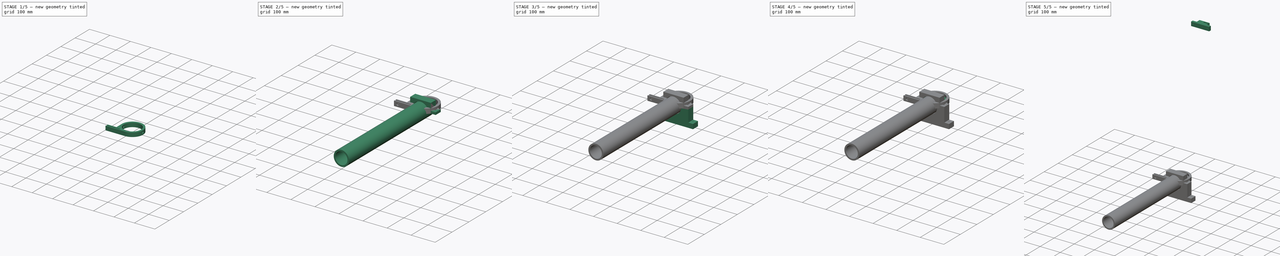
[diagram: build sequence overview — one tinted view per stage of 5, left to right]
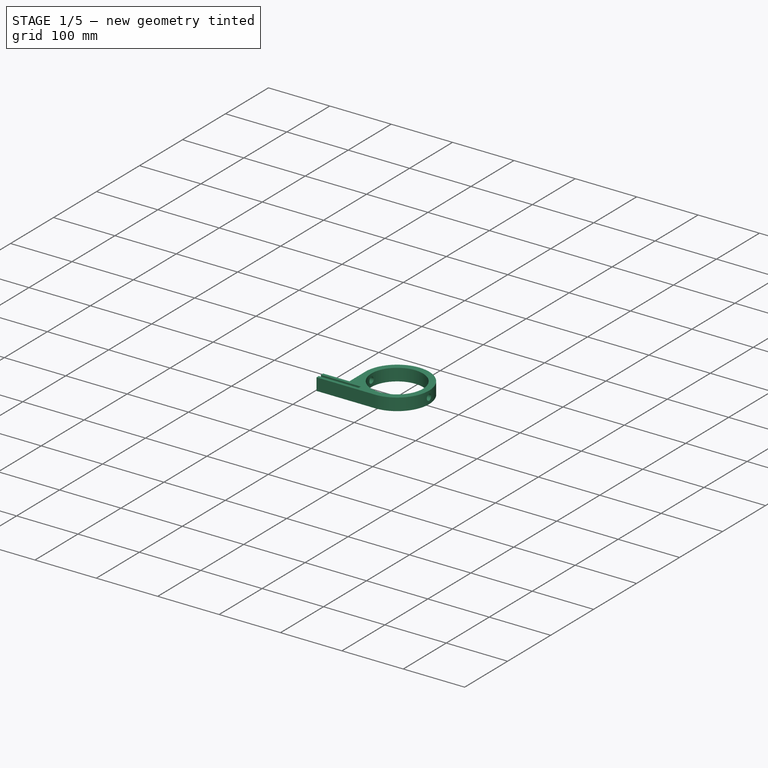
[diagram: stage 1 of 5 — iso view after this stage's code; geometry added in this stage tinted green]
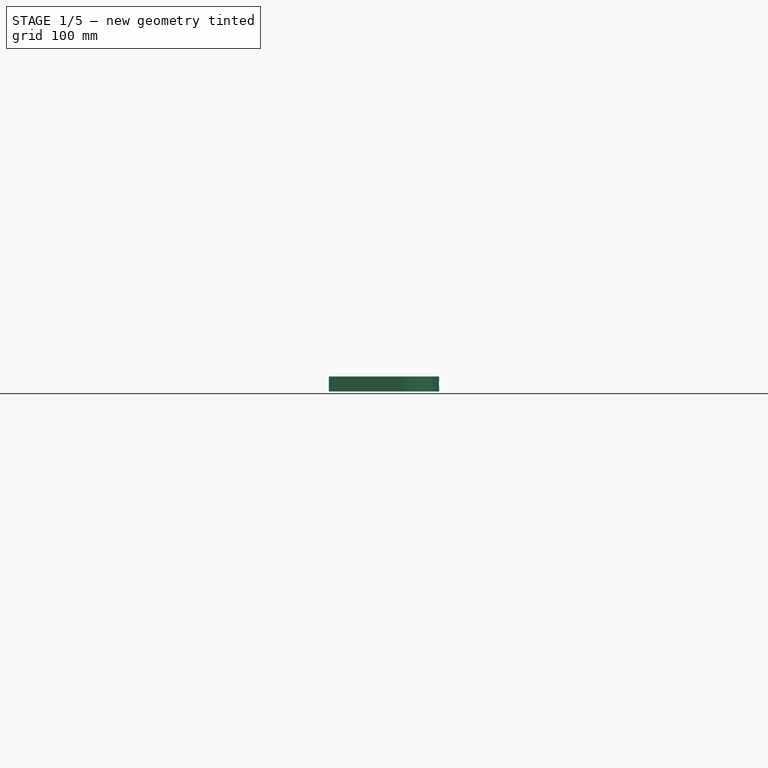
[diagram: stage 1 of 5 — front view after this stage's code; geometry added in this stage tinted green]
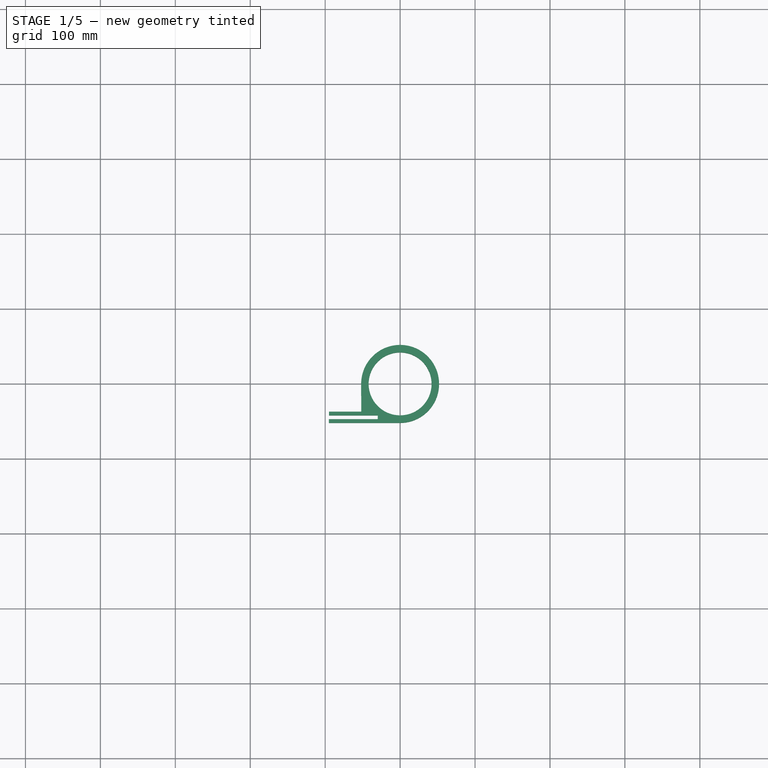
[diagram: stage 1 of 5 — top view after this stage's code; geometry added in this stage tinted green]
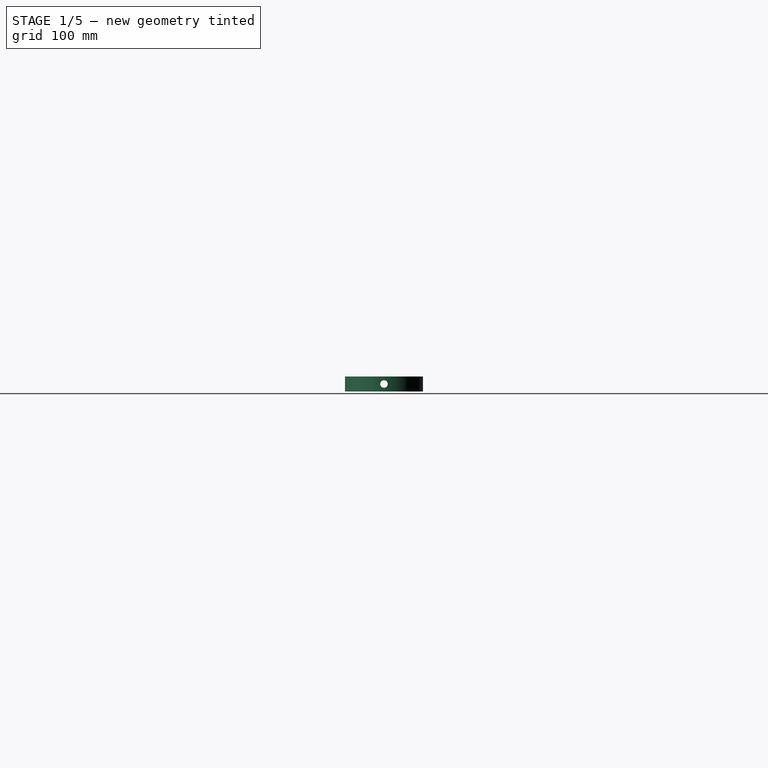
[diagram: stage 1 of 5 — right view after this stage's code; geometry added in this stage tinted green]
FCSTD DOCUMENT  (FreeCAD 0.21R33668 +7 (Git))
Label: Yoke
License: All rights reserved
LicenseURL: https://en.wikipedia.org/wiki/All_rights_reserved
objects: Sketcher::SketchObject×19, PartDesign::Plane×10, PartDesign::Body×7, PartDesign::Hole×7, PartDesign::Pad×6, PartDesign::Pocket×5, App::Part×3, PartDesign::Revolution×1
note: 74 computed .brp shape members not serialized (recipe doc carries the construction recipe); baked Part::Feature solids carry a one-line shape summary decoded from their .brp

FEATURE [PartDesign::Body] Body006  label="Body"
  Group = -> [Sketch019,Pad005]
  Origin = -> Origin012
  Placement = pos=(-12,3,0) rot=(0,0,1;0rad)
  Tip = -> Pad005
FEATURE [App::Part] Part002  label="Rod"
  Group = -> [Body006]
  Origin = -> Origin011
  Placement = pos=(0,-602,0) rot=(0,0,1;0rad)
FEATURE [PartDesign::Pad] Pad
  Direction = (0,0,1)
  Length = 20
  Length2 = 10
  Profile = -> Sketch
  ReferenceAxis = -> Sketch [N_Axis]
  Type = 0
FEATURE [PartDesign::Pocket] Pocket001
  BaseFeature = -> Pad
  Direction = (1,0,0)
  Length = 5
  Length2 = 5
  Profile = -> Sketch002
  ReferenceAxis = -> Sketch002 [N_Axis]
  Type = 1
FEATURE [PartDesign::Hole] Hole001
  BaseFeature = -> Pocket001
  CustomThreadClearance = 0
  Depth = 25
  DepthType = 0
  Diameter = 6.6
  DrillForDepth = false
  DrillPoint = 1
  DrillPointAngle = 118
  HoleCutCountersinkAngle = 90
  HoleCutCustomValues = false
  HoleCutDepth = 0
  HoleCutDiameter = 12
  HoleCutType = 2
  ModelThread = false
  Profile = -> Sketch010
  Tapered = false
  TaperedAngle = 90
  ThreadClass = 0
  ThreadDepth = 25
  ThreadDepthType = 0
  ThreadDirection = 0
  ThreadFit = 0
  ThreadSize = 14
  ThreadType = 1
  Threaded = false
  UseCustomThreadClearance = false
FEATURE [PartDesign::Pocket] Pocket
  BaseFeature = -> Hole001
  Direction = (0,0,-1)
  Length = 5
  Length2 = 5
  Profile = -> Sketch001
  ReferenceAxis = -> Sketch001 [N_Axis]
  Type = 1
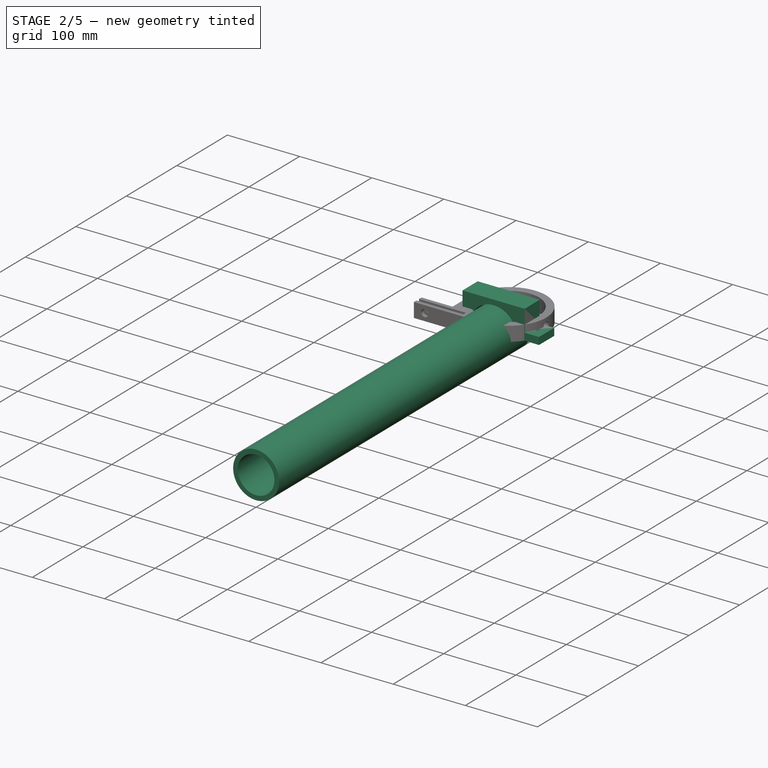
[diagram: stage 2 of 5 — iso view after this stage's code; geometry added in this stage tinted green]
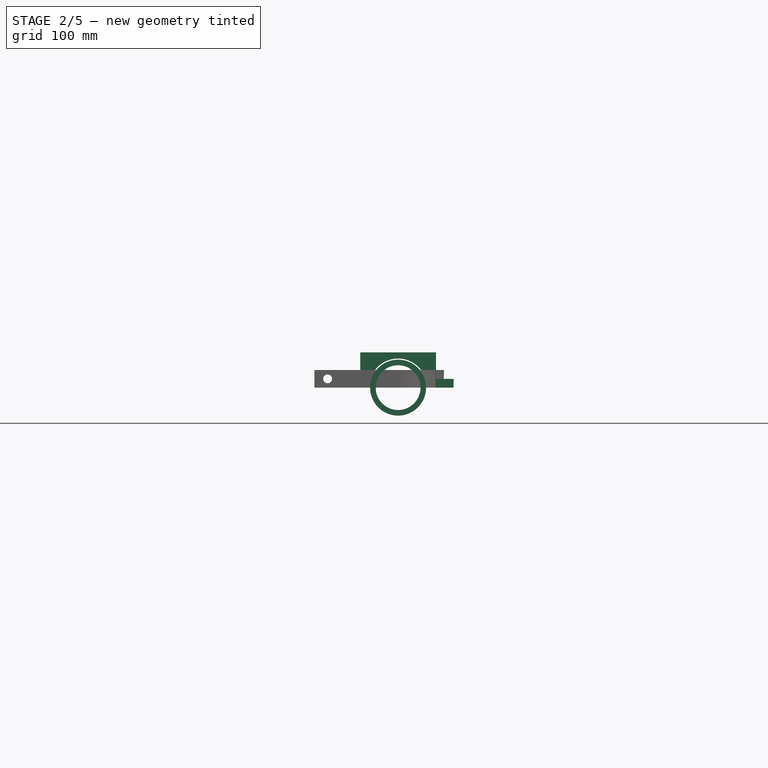
[diagram: stage 2 of 5 — front view after this stage's code; geometry added in this stage tinted green]
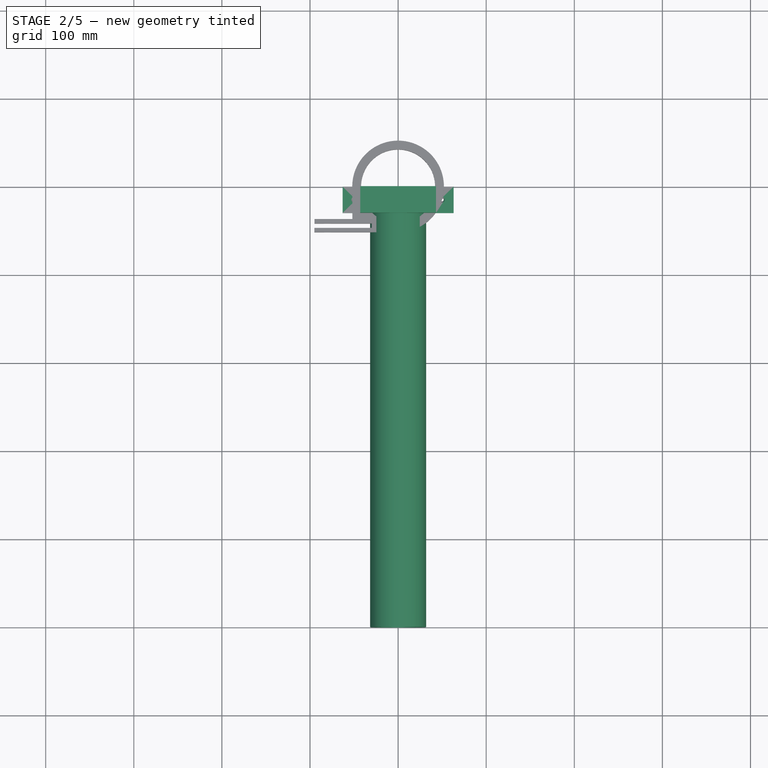
[diagram: stage 2 of 5 — top view after this stage's code; geometry added in this stage tinted green]
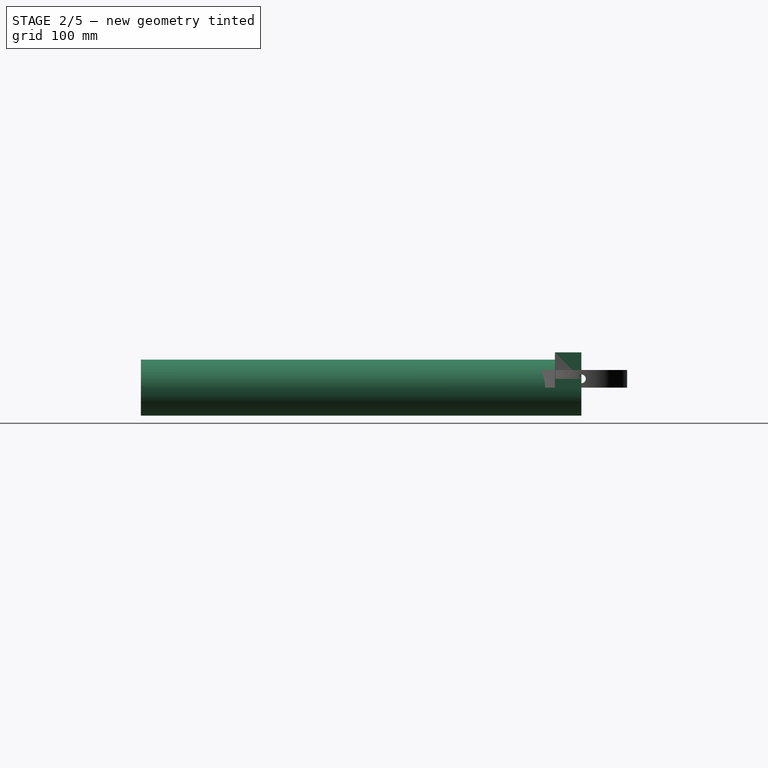
[diagram: stage 2 of 5 — right view after this stage's code; geometry added in this stage tinted green]
FEATURE [PartDesign::Body] Body004  label="Bottom"
  Group = -> [Sketch014,Pad003,DatumPlane009,Sketch015,Hole004,DatumPlane010,Sketch016,Hole005]
  Origin = -> Origin009
  Tip = -> Hole005
FEATURE [Sketcher::SketchObject] Sketch017
  FullyConstrained = true
  MapMode = 5
  Placement = pos=(0,0,0) rot=(1,0,0;1.5708rad)
  Support = -> [XZ_Plane010]
  sketch-geometry (10):
    g0: ArcOfCircle CenterX=0 CenterY=0 CenterZ=0 NormalX=0 NormalY=0 NormalZ=1 AngleXU=0 Radius=33 StartAngle=0 EndAngle=3.14159
    g1: LineSegment StartX=-33 StartY=4e-15 StartZ=0 EndX=-63 EndY=0 EndZ=0
    g2: LineSegment StartX=63 StartY=0 StartZ=0 EndX=33 EndY=0 EndZ=0
    g3: LineSegment StartX=-63 StartY=0 StartZ=0 EndX=-63 EndY=10 EndZ=0
    g4: LineSegment StartX=-63 StartY=10 StartZ=0 EndX=-43 EndY=10 EndZ=0
    g5: LineSegment StartX=-43 StartY=10 StartZ=0 EndX=-43 EndY=40 EndZ=0
    g6: LineSegment StartX=-43 StartY=40 StartZ=0 EndX=43 EndY=40 EndZ=0
    g7: LineSegment StartX=43 StartY=40 StartZ=0 EndX=43 EndY=10 EndZ=0
    g8: LineSegment StartX=43 StartY=10 StartZ=0 EndX=63 EndY=10 EndZ=0
    g9: LineSegment StartX=63 StartY=10 StartZ=0 EndX=63 EndY=0 EndZ=0
  constraints (30):
    c: Coincident(g0,g-1)
    c: PointOnObject(g0,g-1)
    c: PointOnObject(g0,g-1)
    c: Coincident(g0,g1)
    c: Coincident(g2,g0)
    c: Horizontal(g2)
    c: DistanceX(g1,g0) = 30
    c: PointOnObject(g1,g-1)
    c: Coincident(g1,g3)
    c: Vertical(g3)
    c: Coincident(g3,g4)
    c: Horizontal(g4)
    c: Coincident(g4,g5)
    c: Vertical(g5)
    c: Coincident(g5,g6)
    c: Horizontal(g6)
    c: Coincident(g6,g7)
    c: Coincident(g7,g8)
    c: Coincident(g8,g9)
    c: Coincident(g9,g2)
    c: DistanceY(g1,g3) = 10
    c: DistanceX(g3,g4) = 20
    c: DistanceY(g4,g5) = 30
    c: Equal(g2,g1)
    c: DistanceX(g5,g6) = 86
    c: Radius(g0) = 33
    c: Equal(g5,g7)
    c: Equal(g8,g4)
    c: Equal(g9,g3)
    c: Vertical(g9)
FEATURE [PartDesign::Pad] Pad004
  Direction = (0,-1,-2e-16)
  Length = 30
  Length2 = 10
  Placement = pos=(0,0,0) rot=(1,0,0;1.5708rad)
  Profile = -> Sketch017
  ReferenceAxis = -> Sketch017 [N_Axis]
  Type = 0
FEATURE [PartDesign::Plane] DatumPlane011
  Length = 60
  MapMode = 45
  Placement = pos=(0,-15,10) rot=(0,0,1;1.5708rad)
  ResizeMode = 0
  Support = -> [Pad004]
  Width = 60
FEATURE [Sketcher::SketchObject] Sketch018
  FullyConstrained = true
  MapMode = 5
  Placement = pos=(0,-15,10) rot=(0,0,1;1.5708rad)
  Support = -> [DatumPlane011]
  sketch-geometry (2):
    g0: Circle CenterX=0 CenterY=-50 CenterZ=0 NormalX=0 NormalY=0 NormalZ=1 AngleXU=0 Radius=3
    g1: Circle CenterX=0 CenterY=50 CenterZ=0 NormalX=0 NormalY=0 NormalZ=1 AngleXU=0 Radius=3
  constraints (6):
    c: PointOnObject(g0,g-2)
    c: PointOnObject(g1,g-2)
    c: Radius(g0) = 3
    c: Radius(g1) = 3
    c: DistanceY(g-1,g1) = 50
    c: DistanceY(g0,g-1) = 50
FEATURE [PartDesign::Hole] Hole006
  BaseFeature = -> Pad004
  CustomThreadClearance = 0
  Depth = 25
  DepthType = 0
  Diameter = 3.4
  DrillForDepth = false
  DrillPoint = 1
  DrillPointAngle = 118
  HoleCutCountersinkAngle = 90
  HoleCutCustomValues = false
  HoleCutDepth = 1
  HoleCutDiameter = 6.1
  HoleCutType = 3
  ModelThread = false
  Placement = pos=(0,0,0) rot=(1,0,0;1.5708rad)
  Profile = -> Sketch018
  Tapered = false
  TaperedAngle = 90
  ThreadClass = 0
  ThreadDepth = 25
  ThreadDepthType = 0
  ThreadDirection = 0
  ThreadFit = 0
  ThreadSize = 9
  ThreadType = 1
  Threaded = false
  UseCustomThreadClearance = false
FEATURE [PartDesign::Body] Body005  label="Top"
  Group = -> [Sketch017,Pad004,DatumPlane011,Sketch018,Hole006]
  Origin = -> Origin010
  Tip = -> Hole006
FEATURE [App::Part] Part001  label="Rod Support"
  Group = -> [Body004,Body005]
  Origin = -> Origin008
  Placement = pos=(-12,-896,0) rot=(0,0,1;0rad)
FEATURE [Sketcher::SketchObject] Sketch019
  FullyConstrained = true
  MapMode = 5
  Placement = pos=(0,0,0) rot=(1,0,0;1.5708rad)
  Support = -> [XZ_Plane012]
  sketch-geometry (2):
    g0: Circle CenterX=0 CenterY=0 CenterZ=0 NormalX=0 NormalY=0 NormalZ=1 AngleXU=0 Radius=31.75
    g1: Circle CenterX=0 CenterY=0 CenterZ=0 NormalX=0 NormalY=0 NormalZ=1 AngleXU=0 Radius=25.4
  constraints (4):
    c: Coincident(g0,g-1)
    c: Coincident(g1,g0)
    c: Radius(g0) = 31.75
    c: Radius(g1) = 25.4
FEATURE [PartDesign::Pad] Pad005
  Direction = (0,-1,2e-16)
  Length = 500
  Length2 = 10
  Placement = pos=(0,0,0) rot=(1,0,0;1.5708rad)
  Profile = -> Sketch019
  ReferenceAxis = -> Sketch019 [N_Axis]
  Type = 0
FEATURE [PartDesign::Plane] DatumPlane
  Length = 164.146
  MapMode = 5
  Placement = pos=(0,-37,0) rot=(0,0.707107,0.707107;3.14159rad)
  ResizeMode = 0
  Support = -> [Pocket]
  Width = 67.1464
FEATURE [Sketcher::SketchObject] Sketch020
  FullyConstrained = true
  MapMode = 5
  Placement = pos=(0,-37,0) rot=(0,0.707107,0.707107;3.14159rad)
  Support = -> [DatumPlane]
  sketch-geometry (1):
    g0: Circle CenterX=80 CenterY=10 CenterZ=0 NormalX=0 NormalY=0 NormalZ=1 AngleXU=0 Radius=5
  constraints (3):
    c: Radius(g0) = 5
    c: DistanceY(g-1,g0) = 10
    c: DistanceX(g-1,g0) = 80
FEATURE [PartDesign::Pocket] Pocket005
  BaseFeature = -> Pocket
  Direction = (0,-1,2e-16)
  Length = 5
  Length2 = 5
  Profile = -> Sketch020
  ReferenceAxis = -> Sketch020 [N_Axis]
  Type = 1
FEATURE [PartDesign::Body] Body  label="Main Bearing"
  Group = -> [Sketch,Pad,Sketch001,DatumPlane001,Sketch002,Pocket001,Sketch010,Hole001,Pocket,DatumPlane,Sketch020,Pocket005]
  Origin = -> Origin001
  Placement = pos=(1,-773,1.72e-13) rot=(1,0,0;1.5708rad)
  Tip = -> Pocket005
FEATURE [App::Part] Part  label="Y-Axis"
  Group = -> [Body,Body001,Body002,Body003]
  Origin = -> Origin
  Placement = pos=(-13,0,0) rot=(0,0,1;0rad)
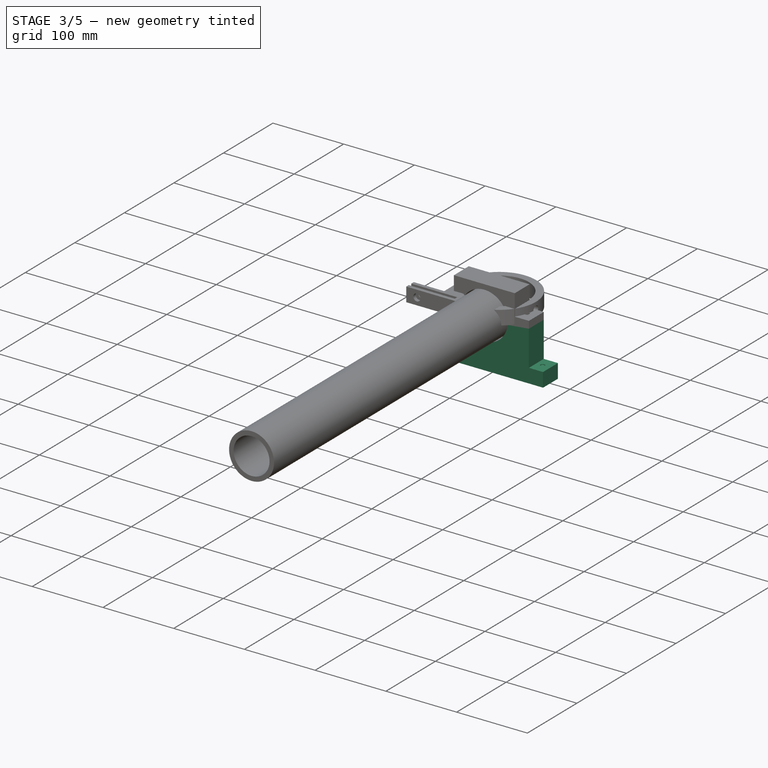
[diagram: stage 3 of 5 — iso view after this stage's code; geometry added in this stage tinted green]
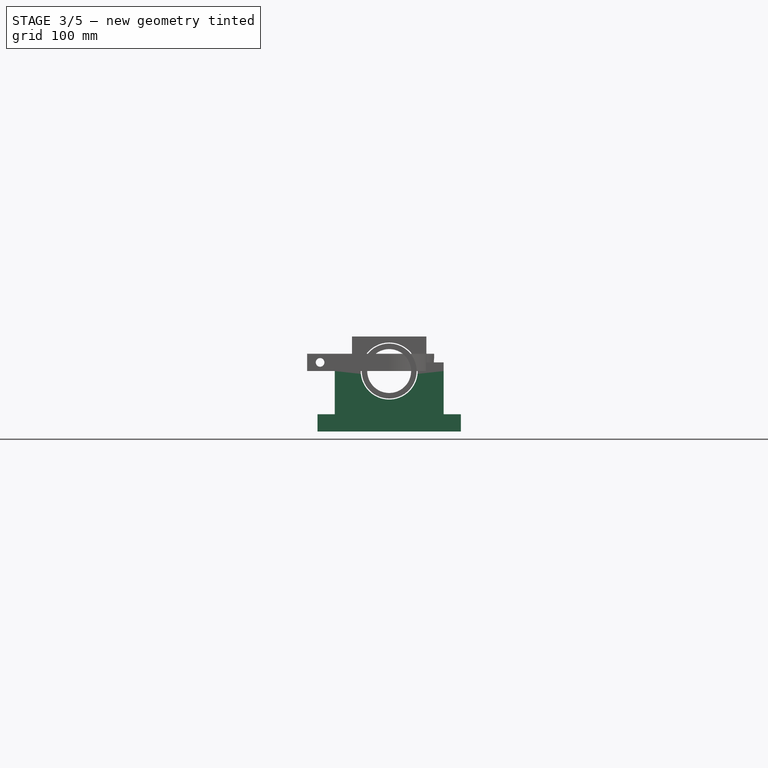
[diagram: stage 3 of 5 — front view after this stage's code; geometry added in this stage tinted green]
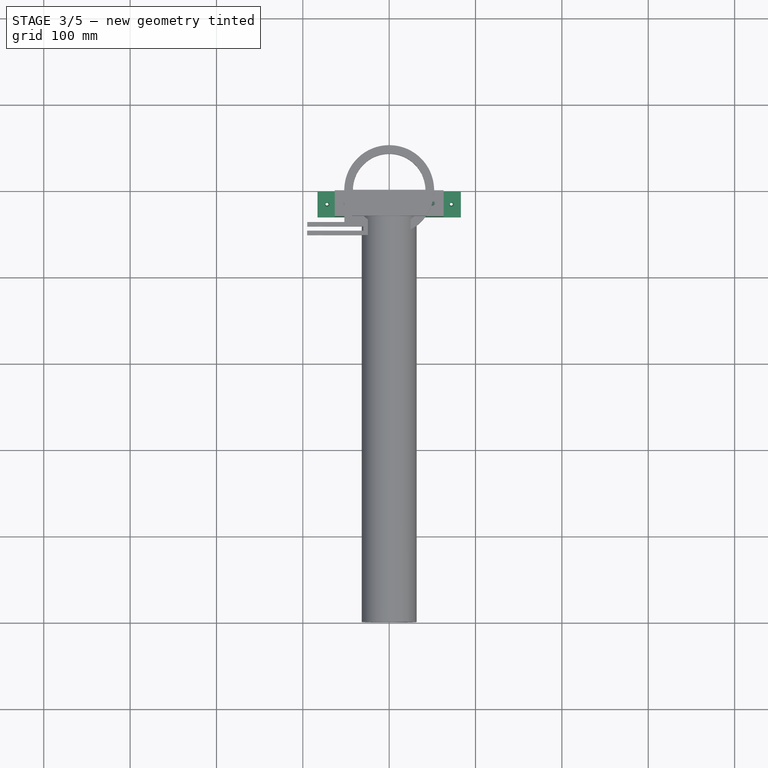
[diagram: stage 3 of 5 — top view after this stage's code; geometry added in this stage tinted green]
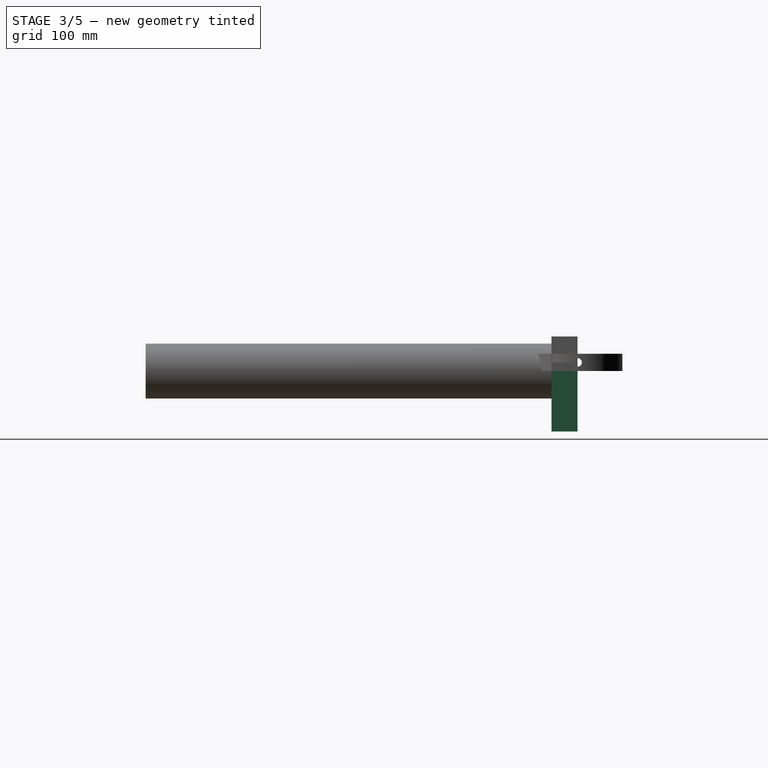
[diagram: stage 3 of 5 — right view after this stage's code; geometry added in this stage tinted green]
FEATURE [PartDesign::Body] Body003  label="Inner Bearing"
  Group = -> [Sketch011,Revolution,DatumPlane007,Sketch012,Hole002,DatumPlane008,Sketch013,Hole003]
  Origin = -> Origin007
  Placement = pos=(1,-783,1.754e-13) rot=(1,0,0;1.5708rad)
  Tip = -> Hole003
FEATURE [Sketcher::SketchObject] Sketch014
  FullyConstrained = true
  MapMode = 5
  Placement = pos=(0,0,0) rot=(1,0,0;1.5708rad)
  Support = -> [XZ_Plane009]
  sketch-geometry (10):
    g0: ArcOfCircle CenterX=0 CenterY=0 CenterZ=0 NormalX=0 NormalY=0 NormalZ=1 AngleXU=0 Radius=33 StartAngle=3.14159 EndAngle=6.28319
    g1: LineSegment StartX=-33 StartY=0 StartZ=0 EndX=-63 EndY=0 EndZ=0
    g2: LineSegment StartX=-63 StartY=0 StartZ=0 EndX=-63 EndY=-50 EndZ=0
    g3: LineSegment StartX=-63 StartY=-50 StartZ=0 EndX=-83 EndY=-50 EndZ=0
    g4: LineSegment StartX=-83 StartY=-50 StartZ=0 EndX=-83 EndY=-70 EndZ=0
    g5: LineSegment StartX=-83 StartY=-70 StartZ=0 EndX=83 EndY=-70 EndZ=0
    g6: LineSegment StartX=83 StartY=-70 StartZ=0 EndX=83 EndY=-50 EndZ=0
    g7: LineSegment StartX=83 StartY=-50 StartZ=0 EndX=63 EndY=-50 EndZ=0
    g8: LineSegment StartX=63 StartY=-50 StartZ=0 EndX=63 EndY=0 EndZ=0
    g9: LineSegment StartX=63 StartY=0 StartZ=0 EndX=33 EndY=0 EndZ=0
  constraints (30):
    c: Coincident(g0,g-1)
    c: PointOnObject(g0,g-1)
    c: PointOnObject(g0,g-1)
    c: Radius(g0) = 33
    c: Coincident(g0,g1)
    c: Coincident(g1,g2)
    c: Vertical(g2)
    c: Coincident(g2,g3)
    c: Horizontal(g3)
    c: Coincident(g3,g4)
    c: Vertical(g4)
    c: Coincident(g4,g5)
    c: Horizontal(g5)
    c: Coincident(g5,g6)
    c: Vertical(g6)
    c: Coincident(g6,g7)
    c: Horizontal(g7)
    c: Coincident(g7,g8)
    c: PointOnObject(g8,g-1)
    c: Vertical(g8)
    c: Coincident(g8,g9)
    c: Coincident(g9,g0)
    c: DistanceX(g1,g0) = 30
    c: Equal(g1,g9)
    c: DistanceY(g4,g3) = 20
    c: Equal(g4,g6)
    c: DistanceY(g2,g1) = 50
    c: PointOnObject(g1,g-1)
    c: DistanceX(g3,g2) = 20
    c: Equal(g3,g7)
FEATURE [PartDesign::Pad] Pad003
  Direction = (0,-1,-2e-16)
  Length = 30
  Length2 = 10
  Placement = pos=(0,0,0) rot=(1,0,0;1.5708rad)
  Profile = -> Sketch014
  ReferenceAxis = -> Sketch014 [N_Axis]
  Type = 0
FEATURE [PartDesign::Plane] DatumPlane009
  Length = 60
  MapMode = 45
  Placement = pos=(0,-15,-50) rot=(0,0,1;1.5708rad)
  ResizeMode = 0
  Support = -> [Pad003]
  Width = 60
FEATURE [Sketcher::SketchObject] Sketch015
  FullyConstrained = true
  MapMode = 5
  Placement = pos=(0,-15,-50) rot=(0,0,1;1.5708rad)
  Support = -> [DatumPlane009]
  sketch-geometry (2):
    g0: Circle CenterX=0 CenterY=-72 CenterZ=0 NormalX=0 NormalY=0 NormalZ=1 AngleXU=0 Radius=3
    g1: Circle CenterX=0 CenterY=72 CenterZ=0 NormalX=0 NormalY=0 NormalZ=1 AngleXU=0 Radius=3
  constraints (6):
    c: PointOnObject(g0,g-2)
    c: DistanceY(g0,g-1) = 72
    c: Radius(g0) = 3
    c: PointOnObject(g1,g-2)
    c: DistanceY(g-1,g1) = 72
    c: Radius(g1) = 3
FEATURE [PartDesign::Hole] Hole004
  BaseFeature = -> Pad003
  CustomThreadClearance = 0
  Depth = 25
  DepthType = 0
  Diameter = 3.4
  DrillForDepth = false
  DrillPoint = 1
  DrillPointAngle = 118
  HoleCutCountersinkAngle = 90
  HoleCutCustomValues = false
  HoleCutDepth = 1
  HoleCutDiameter = 6.1
  HoleCutType = 3
  ModelThread = false
  Placement = pos=(0,0,0) rot=(1,0,0;1.5708rad)
  Profile = -> Sketch015
  Tapered = false
  TaperedAngle = 90
  ThreadClass = 0
  ThreadDepth = 25
  ThreadDepthType = 0
  ThreadDirection = 0
  ThreadFit = 0
  ThreadSize = 9
  ThreadType = 1
  Threaded = false
  UseCustomThreadClearance = false
FEATURE [PartDesign::Plane] DatumPlane010
  Length = 60
  MapMode = 45
  Placement = pos=(0,-15,-3.3e-15) rot=(0,0,1;1.5708rad)
  ResizeMode = 0
  Support = -> [Hole004]
  Width = 60
FEATURE [Sketcher::SketchObject] Sketch016
  FullyConstrained = true
  MapMode = 5
  Placement = pos=(0,-15,-3.3e-15) rot=(0,0,1;1.5708rad)
  Support = -> [DatumPlane010]
  sketch-geometry (2):
    g0: Circle CenterX=0 CenterY=-50 CenterZ=0 NormalX=0 NormalY=0 NormalZ=1 AngleXU=0 Radius=3
    g1: Circle CenterX=0 CenterY=50 CenterZ=0 NormalX=0 NormalY=0 NormalZ=1 AngleXU=0 Radius=3
  constraints (6):
    c: PointOnObject(g0,g-2)
    c: DistanceY(g0,g-1) = 50
    c: Radius(g0) = 3
    c: PointOnObject(g1,g-2)
    c: DistanceY(g-1,g1) = 50
    c: Radius(g1) = 3
FEATURE [PartDesign::Hole] Hole005
  BaseFeature = -> Hole004
  CustomThreadClearance = 0
  Depth = 25
  DepthType = 0
  Diameter = 3.4
  DrillForDepth = false
  DrillPoint = 1
  DrillPointAngle = 118
  HoleCutCountersinkAngle = 90
  HoleCutCustomValues = false
  HoleCutDepth = 0
  HoleCutDiameter = 6.1
  HoleCutType = 0
  ModelThread = false
  Placement = pos=(0,0,0) rot=(1,0,0;1.5708rad)
  Profile = -> Sketch016
  Tapered = false
  TaperedAngle = 90
  ThreadClass = 0
  ThreadDepth = 25
  ThreadDepthType = 0
  ThreadDirection = 0
  ThreadFit = 0
  ThreadSize = 9
  ThreadType = 1
  Threaded = false
  UseCustomThreadClearance = false
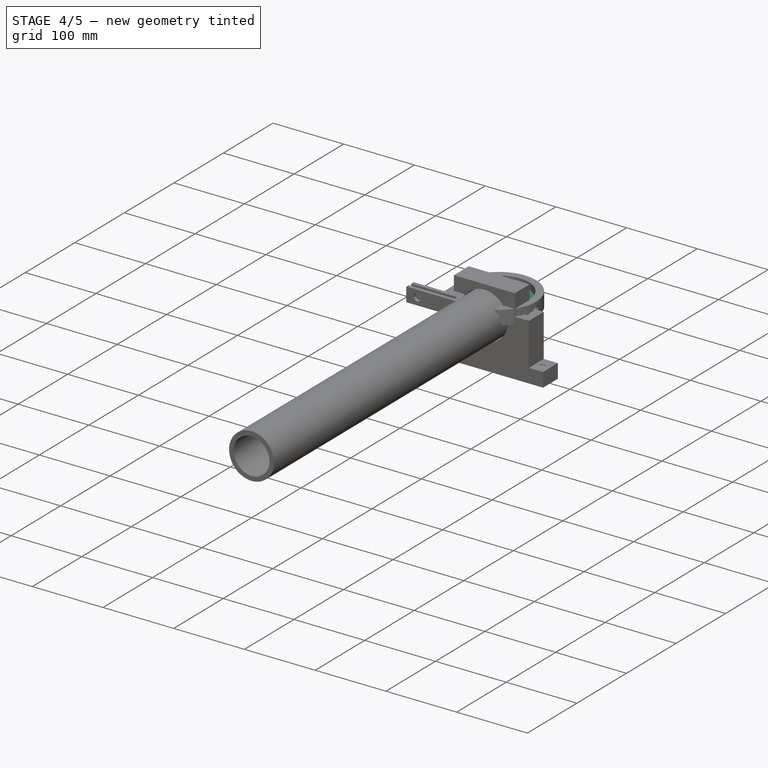
[diagram: stage 4 of 5 — iso view after this stage's code; geometry added in this stage tinted green]
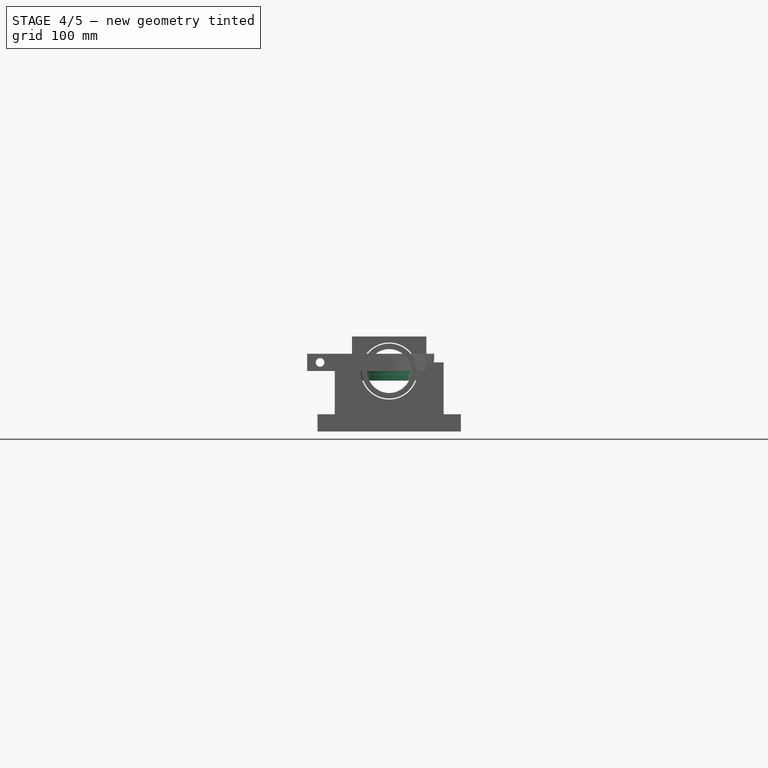
[diagram: stage 4 of 5 — front view after this stage's code; geometry added in this stage tinted green]
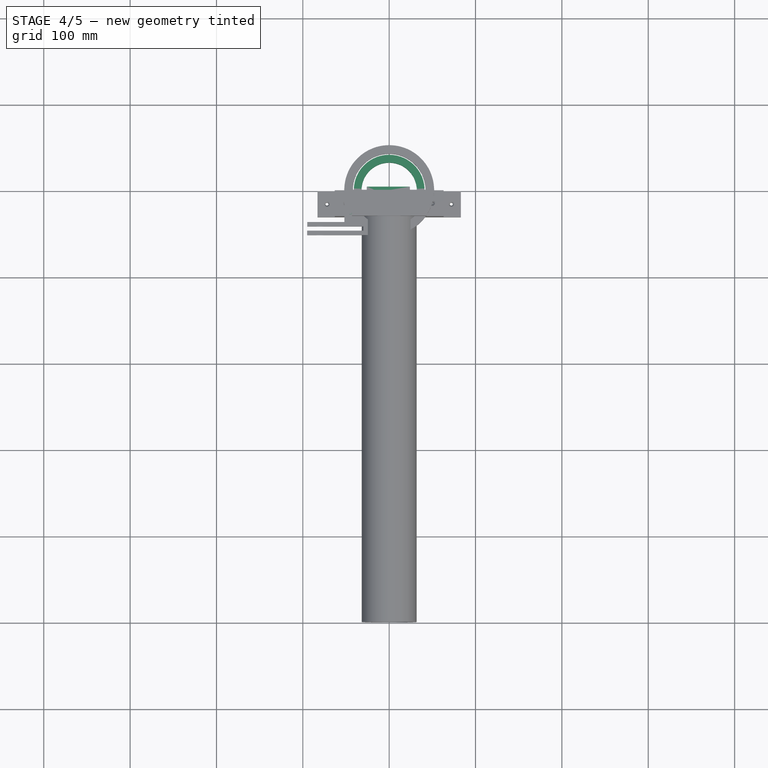
[diagram: stage 4 of 5 — top view after this stage's code; geometry added in this stage tinted green]
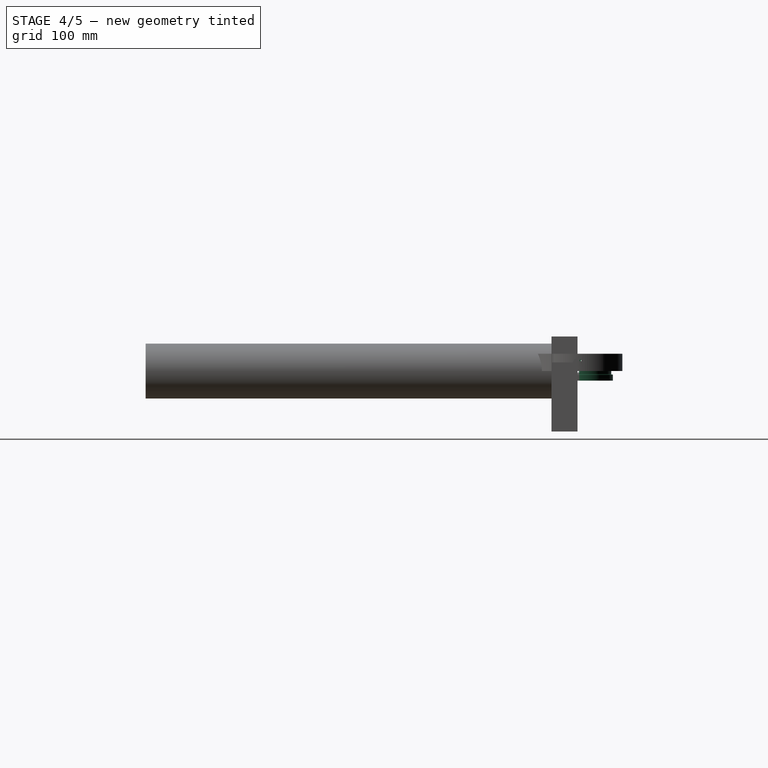
[diagram: stage 4 of 5 — right view after this stage's code; geometry added in this stage tinted green]
FEATURE [PartDesign::Body] Body001  label="Hinge"
  Group = -> [Sketch005,Pad001,DatumPlane003,Sketch006,Pocket003]
  Origin = -> Origin003
  Placement = pos=(-115.598,-747.48,-43) rot=(0.862856,-0.357407,-0.357407;1.71777rad)
  Tip = -> Pocket003
FEATURE [Sketcher::SketchObject] Sketch007
  FullyConstrained = true
  MapMode = 5
  Support = -> [XY_Plane005]
  sketch-geometry (12):
    g0: LineSegment StartX=24 StartY=4 StartZ=0 EndX=-26 EndY=4 EndZ=0
    g1: LineSegment StartX=-26 StartY=4 StartZ=0 EndX=-26 EndY=-16 EndZ=0
    g2: LineSegment StartX=-26 StartY=-16 StartZ=0 EndX=-46 EndY=-16 EndZ=0
    g3: LineSegment StartX=-46 StartY=-16 StartZ=0 EndX=-46 EndY=-28 EndZ=0
    g4: LineSegment StartX=-46 StartY=-28 StartZ=0 EndX=44 EndY=-28 EndZ=0
    g5: LineSegment StartX=44 StartY=-28 StartZ=0 EndX=44 EndY=-16 EndZ=0
    g6: LineSegment StartX=44 StartY=-16 StartZ=0 EndX=24 EndY=-16 EndZ=0
    g7: LineSegment StartX=24 StartY=-16 StartZ=0 EndX=24 EndY=-7 EndZ=0
    g8: LineSegment StartX=24 StartY=-7 StartZ=0 EndX=0 EndY=-7 EndZ=0
    g9: LineSegment StartX=0 StartY=-7 StartZ=0 EndX=0 EndY=0 EndZ=0
    g10: LineSegment StartX=0 StartY=0 StartZ=0 EndX=24 EndY=0 EndZ=0
    g11: LineSegment StartX=24 StartY=0 StartZ=0 EndX=24 EndY=4 EndZ=0
  constraints (36):
    c: Horizontal(g0)
    c: Coincident(g0,g1)
    c: Vertical(g1)
    c: Coincident(g1,g2)
    c: Horizontal(g2)
    c: Coincident(g2,g3)
    c: Vertical(g3)
    c: Coincident(g3,g4)
    c: Horizontal(g4)
    c: Coincident(g4,g5)
    c: Vertical(g5)
    c: Coincident(g5,g6)
    c: Horizontal(g6)
    c: Coincident(g6,g7)
    c: Vertical(g7)
    c: Coincident(g7,g8)
    c: Horizontal(g8)
    c: Coincident(g8,g9)
    c: Vertical(g9)
    c: Coincident(g9,g10)
    c: Horizontal(g10)
    c: Coincident(g10,g11)
    c: Coincident(g11,g0)
    c: Vertical(g11)
    c: DistanceY(g10,g0) = 4
    c: Equal(g2,g6)
    c: Equal(g5,g3)
    c: DistanceX(g2,g1) = 20
    c: Equal(g10,g8)
    c: DistanceY(g8,g9) = 7
    c: DistanceX(g8,g7) = 24
    c: DistanceY(g1,g0) = 20
    c: DistanceY(g4,g5) = 12
    c: PointOnObject(g8,g-2)
    c: PointOnObject(g9,g-1)
    c: DistanceX(g0,g0) = 50
FEATURE [PartDesign::Pad] Pad002
  Direction = (0,0,1)
  Length = 20
  Length2 = 10
  Profile = -> Sketch007
  ReferenceAxis = -> Sketch007 [N_Axis]
  Type = 0
FEATURE [PartDesign::Body] Body002  label="Potentiometer Support"
  Group = -> [Sketch007,Pad002,DatumPlane004,Sketch008,Pocket004,DatumPlane005,Sketch009,Hole]
  Origin = -> Origin005
  Placement = pos=(-261,1.8e-14,-83) rot=(1,0,0;1.5708rad)
  Tip = -> Hole
FEATURE [Sketcher::SketchObject] Sketch010
  FullyConstrained = true
  MapMode = 5
  Placement = pos=(0,-42,0) rot=(1,0,0;1.5708rad)
  sketch-geometry (1):
    g0: Circle CenterX=65 CenterY=10 CenterZ=0 NormalX=0 NormalY=0 NormalZ=1 AngleXU=0 Radius=5
  constraints (3):
    c: Radius(g0) = 5
    c: DistanceY(g-1,g0) = 10
    c: DistanceX(g-1,g0) = 65
FEATURE [Sketcher::SketchObject] Sketch011
  FullyConstrained = true
  MapMode = 5
  Placement = pos=(0,0,0) rot=(1,0,0;1.5708rad)
  Support = -> [XZ_Plane007]
  sketch-geometry (8):
    g0: LineSegment StartX=-32 StartY=-11.1489 StartZ=0 EndX=-32 EndY=11.5 EndZ=0
    g1: LineSegment StartX=-32 StartY=11.5 StartZ=0 EndX=-41 EndY=11.5 EndZ=0
    g2: LineSegment StartX=-41 StartY=11.5 StartZ=0 EndX=-41 EndY=4.5 EndZ=0
    g3: LineSegment StartX=-41 StartY=4.5 StartZ=0 EndX=-39.16 EndY=4.17556 EndZ=0
    g4: LineSegment StartX=-39.16 StartY=4.17556 StartZ=0 EndX=-39.16 EndY=-3.82444 EndZ=0
    g5: LineSegment StartX=-39.16 StartY=-3.82444 StartZ=0 EndX=-41 EndY=-4.14888 EndZ=0
    g6: LineSegment StartX=-41 StartY=-4.14888 StartZ=0 EndX=-41 EndY=-11.1489 EndZ=0
    g7: LineSegment StartX=-41 StartY=-11.1489 StartZ=0 EndX=-32 EndY=-11.1489 EndZ=0
  constraints (24):
    c: Vertical(g0)
    c: Coincident(g0,g1)
    c: Coincident(g2,g3)
    c: Coincident(g3,g4)
    c: Vertical(g4)
    c: Coincident(g4,g5)
    c: Coincident(g5,g6)
    c: Vertical(g6)
    c: Coincident(g6,g7)
    c: Coincident(g7,g0)
    c: Horizontal(g7)
    c: Perpendicular(g2,g1)
    c: Angle(g3,g4) = 1.74533
    c: Angle(g4,g5) = 1.74533
    c: DistanceY(g4,g3) = 8
    c: Coincident(g2,g1)
    c: Perpendicular(g0,g1)
    c: DistanceX(g6,g0) = 9
    c: Equal(g7,g1)
    c: Equal(g2,g6)
    c: DistanceY(g2,g1) = 7
    c: DistanceX(g0,g-1) = 32
    c: DistanceY(g-1,g0) = 11.5
    c: DistanceX(g4,g0) = 7.16
FEATURE [PartDesign::Revolution] Revolution
  Angle = 360
  Axis = (0,-2e-16,1)
  Base = (0,0,0)
  Placement = pos=(0,0,0) rot=(1,0,0;1.5708rad)
  Profile = -> Sketch011
  ReferenceAxis = -> Sketch011 [V_Axis]
FEATURE [PartDesign::Plane] DatumPlane007
  AttachmentOffset = pos=(0,0,-39.16) rot=(0,0,1;0rad)
  Length = 60
  MapMode = 4
  Placement = pos=(-39.16,0,8.7e-15) rot=(0.707107,0,0.707107;3.14159rad)
  ResizeMode = 0
  Support = -> [Revolution]
  Width = 60
FEATURE [Sketcher::SketchObject] Sketch012
  FullyConstrained = true
  MapMode = 5
  Placement = pos=(-39.16,0,8.7e-15) rot=(0.707107,0,0.707107;3.14159rad)
  Support = -> [DatumPlane007]
  sketch-geometry (1):
    g0: Circle CenterX=0 CenterY=0 CenterZ=0 NormalX=0 NormalY=0 NormalZ=1 AngleXU=0 Radius=3
  constraints (2):
    c: Coincident(g0,g-1)
    c: Radius(g0) = 3
FEATURE [PartDesign::Hole] Hole002
  BaseFeature = -> Revolution
  CustomThreadClearance = 0
  Depth = 25
  DepthType = 0
  Diameter = 3.4
  DrillForDepth = false
  DrillPoint = 1
  DrillPointAngle = 118
  HoleCutCountersinkAngle = 90
  HoleCutCustomValues = false
  HoleCutDepth = 1
  HoleCutDiameter = 5.9
  HoleCutType = 3
  ModelThread = false
  Placement = pos=(0,0,0) rot=(1,0,0;1.5708rad)
  Profile = -> Sketch012
  Reversed = true
  Tapered = false
  TaperedAngle = 90
  ThreadClass = 0
  ThreadDepth = 25
  ThreadDepthType = 0
  ThreadDirection = 0
  ThreadFit = 0
  ThreadSize = 9
  ThreadType = 1
  Threaded = false
  UseCustomThreadClearance = false
FEATURE [PartDesign::Plane] DatumPlane008
  AttachmentOffset = pos=(0,0,39.16) rot=(0,0,1;0rad)
  Length = 60
  MapMode = 4
  Placement = pos=(39.16,0,-8.7e-15) rot=(0.707107,0,0.707107;3.14159rad)
  ResizeMode = 0
  Support = -> [Revolution]
  Width = 60
FEATURE [Sketcher::SketchObject] Sketch013
  FullyConstrained = true
  MapMode = 5
  Placement = pos=(39.16,0,-8.7e-15) rot=(0.707107,0,0.707107;3.14159rad)
  Support = -> [DatumPlane008]
  sketch-geometry (1):
    g0: Circle CenterX=0 CenterY=0 CenterZ=0 NormalX=0 NormalY=0 NormalZ=1 AngleXU=0 Radius=3
  constraints (2):
    c: Coincident(g0,g-1)
    c: Radius(g0) = 3
FEATURE [PartDesign::Hole] Hole003
  BaseFeature = -> Hole002
  CustomThreadClearance = 0
  Depth = 25
  DepthType = 0
  Diameter = 3.4
  DrillForDepth = false
  DrillPoint = 1
  DrillPointAngle = 118
  HoleCutCountersinkAngle = 90
  HoleCutCustomValues = false
  HoleCutDepth = 1
  HoleCutDiameter = 6.1
  HoleCutType = 3
  ModelThread = false
  Placement = pos=(0,0,0) rot=(1,0,0;1.5708rad)
  Profile = -> Sketch013
  Tapered = false
  TaperedAngle = 90
  ThreadClass = 0
  ThreadDepth = 25
  ThreadDepthType = 0
  ThreadDirection = 0
  ThreadFit = 0
  ThreadSize = 9
  ThreadType = 1
  Threaded = false
  UseCustomThreadClearance = false
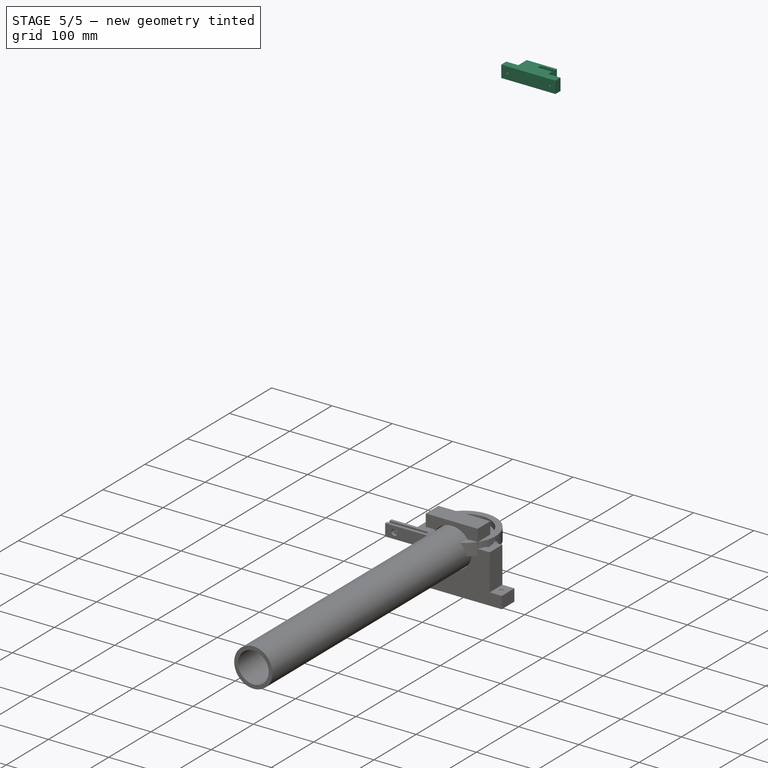
[diagram: stage 5 of 5 — iso view after this stage's code; geometry added in this stage tinted green]
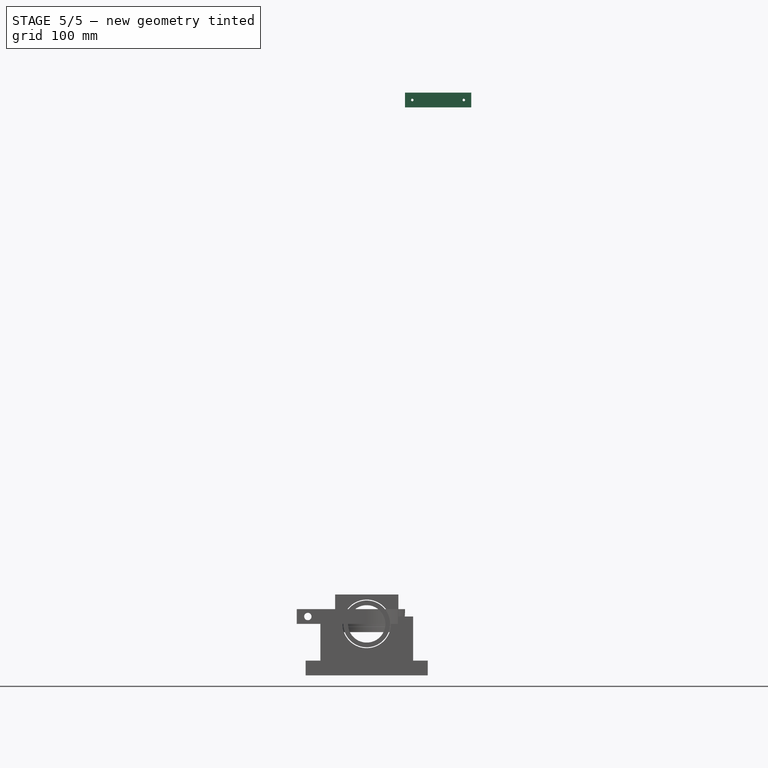
[diagram: stage 5 of 5 — front view after this stage's code; geometry added in this stage tinted green]
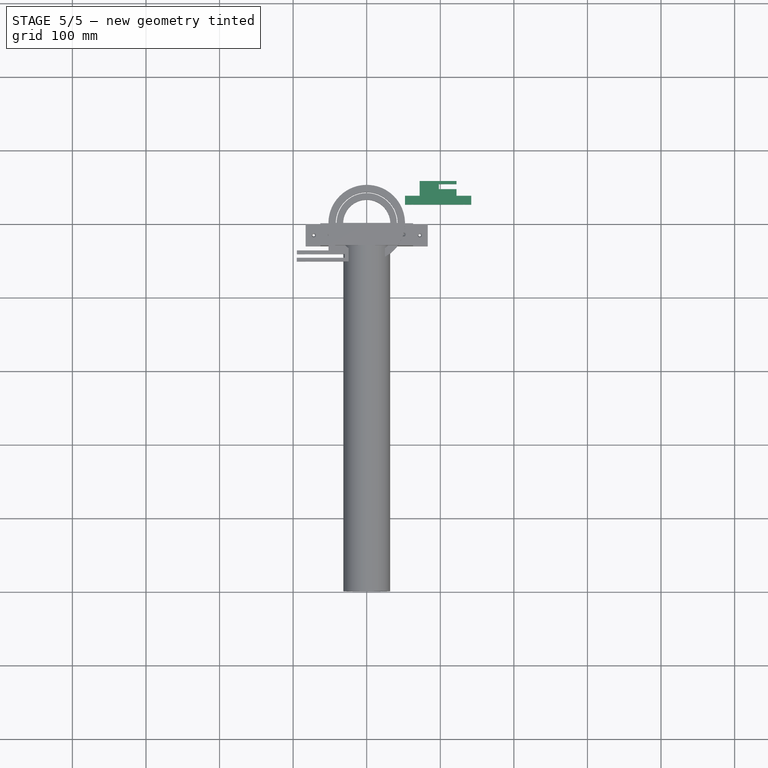
[diagram: stage 5 of 5 — top view after this stage's code; geometry added in this stage tinted green]
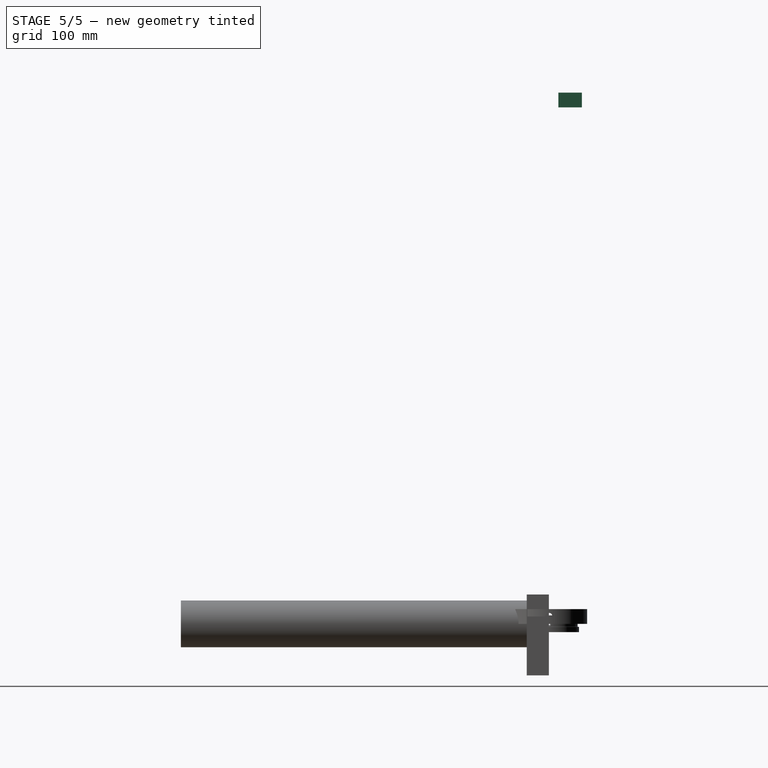
[diagram: stage 5 of 5 — right view after this stage's code; geometry added in this stage tinted green]
FEATURE [Sketcher::SketchObject] Sketch
  FullyConstrained = true
  MapMode = 5
  Support = -> [XY_Plane001]
  sketch-geometry (10):
    g0: LineSegment StartX=-51.87 StartY=-37 StartZ=0 EndX=-94.87 EndY=-37 EndZ=0
    g1: LineSegment StartX=-94.87 StartY=-37 StartZ=0 EndX=-94.87 EndY=-42 EndZ=0
    g2: LineSegment StartX=-94.87 StartY=-42 StartZ=0 EndX=-29.87 EndY=-42 EndZ=0
    g3: LineSegment StartX=-29.87 StartY=-42 StartZ=0 EndX=-29.87 EndY=-47 EndZ=0
    g4: LineSegment StartX=-29.87 StartY=-47 StartZ=0 EndX=-95 EndY=-47 EndZ=0
    g5: LineSegment StartX=-95 StartY=-47 StartZ=0 EndX=-95 EndY=-52 EndZ=0
    g6: LineSegment StartX=-95 StartY=-52 StartZ=0 EndX=-30 EndY=-52 EndZ=0
    g7: LineSegment StartX=-30 StartY=-52 StartZ=0 EndX=-1.07e-14 EndY=-52 EndZ=0
    g8: ArcOfCircle CenterX=0 CenterY=0 CenterZ=0 NormalX=0 NormalY=0 NormalZ=1 AngleXU=0 Radius=52 StartAngle=4.71239 EndAngle=9.42478
    g9: LineSegment StartX=-52 StartY=1.91e-14 StartZ=0 EndX=-51.87 EndY=-37 EndZ=0
  constraints (30):
    c: Horizontal(g0)
    c: Coincident(g0,g1)
    c: Vertical(g1)
    c: Coincident(g1,g2)
    c: Horizontal(g2)
    c: Coincident(g2,g3)
    c: Vertical(g3)
    c: Coincident(g3,g4)
    c: Horizontal(g4)
    c: Coincident(g4,g5)
    c: Coincident(g5,g6)
    c: Horizontal(g6)
    c: Coincident(g6,g7)
    c: Horizontal(g7)
    c: DistanceX(g0,g0) = 43
    c: DistanceX(g1,g2) = 65
    c: DistanceY(g1,g0) = 5
    c: DistanceY(g3,g2) = 5
    c: Vertical(g5)
    c: DistanceY(g5,g4) = 5
    c: DistanceX(g6,g7) = 30
    c: DistanceX(g5,g6) = 65
    c: Coincident(g8,g-1)
    c: Radius(g8) = 52
    c: Coincident(g7,g8)
    c: PointOnObject(g7,g-2)
    c: Coincident(g9,g8)
    c: Coincident(g9,g0)
    c: PointOnObject(g8,g-1)
    c: DistanceX(g0,g-1) = 51.87
FEATURE [Sketcher::SketchObject] Sketch001
  FullyConstrained = true
  MapMode = 5
  Placement = pos=(0,0,20) rot=(0,0,1;0rad)
  sketch-geometry (1):
    g0: Circle CenterX=0 CenterY=0 CenterZ=0 NormalX=0 NormalY=0 NormalZ=1 AngleXU=0 Radius=42
  constraints (2):
    c: Coincident(g0,g-1)
    c: Radius(g0) = 42
FEATURE [PartDesign::Plane] DatumPlane001
  Length = 60
  MapMode = 5
  Placement = pos=(-52,0,0) rot=(0.57735,-0.57735,-0.57735;2.0944rad)
  ResizeMode = 0
  Width = 60
FEATURE [Sketcher::SketchObject] Sketch002
  FullyConstrained = true
  MapMode = 5
  Placement = pos=(-52,0,0) rot=(0.57735,-0.57735,-0.57735;2.0944rad)
  Support = -> [DatumPlane001]
  sketch-geometry (1):
    g0: Circle CenterX=0 CenterY=10 CenterZ=0 NormalX=0 NormalY=0 NormalZ=1 AngleXU=0 Radius=5
  constraints (3):
    c: PointOnObject(g0,g-2)
    c: Radius(g0) = 5
    c: DistanceY(g-1,g0) = 10
FEATURE [Sketcher::SketchObject] Sketch005
  FullyConstrained = true
  MapMode = 5
  Placement = pos=(0,0,0) rot=(1,0,0;1.5708rad)
  Support = -> [XZ_Plane003]
  sketch-geometry (4):
    g0: LineSegment StartX=50 StartY=10 StartZ=0 EndX=-50 EndY=10 EndZ=0
    g1: LineSegment StartX=-50 StartY=-10 StartZ=0 EndX=50 EndY=-10 EndZ=0
    g2: ArcOfCircle CenterX=50 CenterY=0 CenterZ=0 NormalX=0 NormalY=0 NormalZ=1 AngleXU=0 Radius=10 StartAngle=4.71239 EndAngle=7.85398
    g3: ArcOfCircle CenterX=-50 CenterY=0 CenterZ=0 NormalX=0 NormalY=0 NormalZ=1 AngleXU=0 Radius=10 StartAngle=1.5708 EndAngle=4.71239
  constraints (12):
    c: Horizontal(g0)
    c: Horizontal(g1)
    c: DistanceX(g0,g-1) = 50
    c: DistanceX(g0,g0) = 100
    c: PointOnObject(g2,g-1)
    c: Radius(g2) = 10
    c: PointOnObject(g3,g-1)
    c: Coincident(g3,g0)
    c: Coincident(g3,g1)
    c: Radius(g3) = 10
    c: Tangent(g2,g1) = -1.5708
    c: Tangent(g2,g0) = -1.5708
FEATURE [PartDesign::Pad] Pad001
  Direction = (0,-1,2e-16)
  Length = 4.5
  Length2 = 10
  Placement = pos=(0,0,0) rot=(1,0,0;1.5708rad)
  Profile = -> Sketch005
  ReferenceAxis = -> Sketch005 [N_Axis]
  Type = 0
FEATURE [PartDesign::Plane] DatumPlane003
  Length = 135.492
  MapMode = 2
  Placement = pos=(0,0,0) rot=(1,0,0;1.5708rad)
  ResizeMode = 0
  Support = -> [Pad001]
  Width = 65.4919
FEATURE [Sketcher::SketchObject] Sketch006
  FullyConstrained = true
  MapMode = 5
  Placement = pos=(0,0,0) rot=(1,0,0;1.5708rad)
  Support = -> [DatumPlane003]
  sketch-geometry (5):
    g0: Circle CenterX=-50 CenterY=0 CenterZ=0 NormalX=0 NormalY=0 NormalZ=1 AngleXU=0 Radius=5
    g1: LineSegment StartX=50 StartY=-5.5 StartZ=0 EndX=21.5 EndY=-5.5 EndZ=0
    g2: ArcOfCircle CenterX=21.5 CenterY=0 CenterZ=0 NormalX=0 NormalY=0 NormalZ=1 AngleXU=0 Radius=5.5 StartAngle=1.5708 EndAngle=4.71239
    g3: LineSegment StartX=21.5 StartY=5.5 StartZ=0 EndX=50 EndY=5.5 EndZ=0
    g4: ArcOfCircle CenterX=50 CenterY=0 CenterZ=0 NormalX=0 NormalY=0 NormalZ=1 AngleXU=0 Radius=5.5 StartAngle=4.71239 EndAngle=7.85398
  constraints (15):
    c: PointOnObject(g0,g-1)
    c: Radius(g0) = 5
    c: DistanceX(g0,g-1) = 50
    c: Horizontal(g1)
    c: Tangent(g1,g2) = 1.5708
    c: Coincident(g2,g3)
    c: Horizontal(g3)
    c: Tangent(g3,g4) = 1.5708
    c: Coincident(g4,g1)
    c: PointOnObject(g2,g-1)
    c: PointOnObject(g4,g-1)
    c: Radius(g4) = 5.5
    c: Radius(g2) = 5.5
    c: DistanceX(g1,g1) = 28.5
    c: DistanceX(g-1,g3) = 50
FEATURE [PartDesign::Pocket] Pocket003
  BaseFeature = -> Pad001
  Direction = (0,1,-2e-16)
  Length = 5
  Length2 = 5
  Placement = pos=(0,0,0) rot=(1,0,0;1.5708rad)
  Profile = -> Sketch006
  ReferenceAxis = -> Sketch006 [N_Axis]
  Reversed = true
  Type = 0
FEATURE [PartDesign::Plane] DatumPlane004
  Length = 237.64
  MapMode = 5
  Placement = pos=(0,4,0) rot=(0,0.707107,0.707107;3.14159rad)
  ResizeMode = 0
  Support = -> [Pad002]
  Width = 817.64
FEATURE [Sketcher::SketchObject] Sketch008
  FullyConstrained = true
  MapMode = 5
  Placement = pos=(0,4,0) rot=(0,0.707107,0.707107;3.14159rad)
  Support = -> [DatumPlane004]
  sketch-geometry (1):
    g0: Circle CenterX=-12 CenterY=10 CenterZ=0 NormalX=0 NormalY=0 NormalZ=1 AngleXU=0 Radius=5
  constraints (3):
    c: Radius(g0) = 5
    c: DistanceX(g0,g-1) = 12
    c: DistanceY(g-1,g0) = 10
FEATURE [PartDesign::Pocket] Pocket004
  BaseFeature = -> Pad002
  Direction = (0,-1,2e-16)
  Length = 0
  Length2 = 5
  Profile = -> Sketch008
  ReferenceAxis = -> Sketch008 [N_Axis]
  Type = 2
FEATURE [PartDesign::Plane] DatumPlane005
  Length = 817.64
  MapMode = 45
  Placement = pos=(-1,-16,10) rot=(0.57735,0.57735,0.57735;4.18879rad)
  ResizeMode = 0
  Support = -> [Pocket004]
  Width = 237.64
FEATURE [Sketcher::SketchObject] Sketch009
  FullyConstrained = true
  MapMode = 5
  Placement = pos=(-1,-16,10) rot=(0.57735,0.57735,0.57735;4.18879rad)
  Support = -> [DatumPlane005]
  sketch-geometry (2):
    g0: Circle CenterX=0 CenterY=35 CenterZ=0 NormalX=0 NormalY=0 NormalZ=1 AngleXU=0 Radius=3
    g1: Circle CenterX=0 CenterY=-35 CenterZ=0 NormalX=0 NormalY=0 NormalZ=1 AngleXU=0 Radius=3
  constraints (6):
    c: PointOnObject(g0,g-2)
    c: Radius(g0) = 3
    c: DistanceY(g-1,g0) = 35
    c: PointOnObject(g1,g-2)
    c: Equal(g1,g0)
    c: DistanceY(g1,g-1) = 35
FEATURE [PartDesign::Hole] Hole
  BaseFeature = -> Pocket004
  CustomThreadClearance = 0
  Depth = 25
  DepthType = 0
  Diameter = 3.4
  DrillForDepth = false
  DrillPoint = 1
  DrillPointAngle = 118
  HoleCutCountersinkAngle = 90
  HoleCutCustomValues = false
  HoleCutDepth = 0
  HoleCutDiameter = 6.1
  HoleCutType = 2
  ModelThread = false
  Placement = pos=(98,41,702) rot=(0,0,1;0rad)
  Profile = -> Sketch009
  Tapered = false
  TaperedAngle = 90
  ThreadClass = 0
  ThreadDepth = 25
  ThreadDepthType = 0
  ThreadDirection = 0
  ThreadFit = 0
  ThreadSize = 9
  ThreadType = 1
  Threaded = false
  UseCustomThreadClearance = false
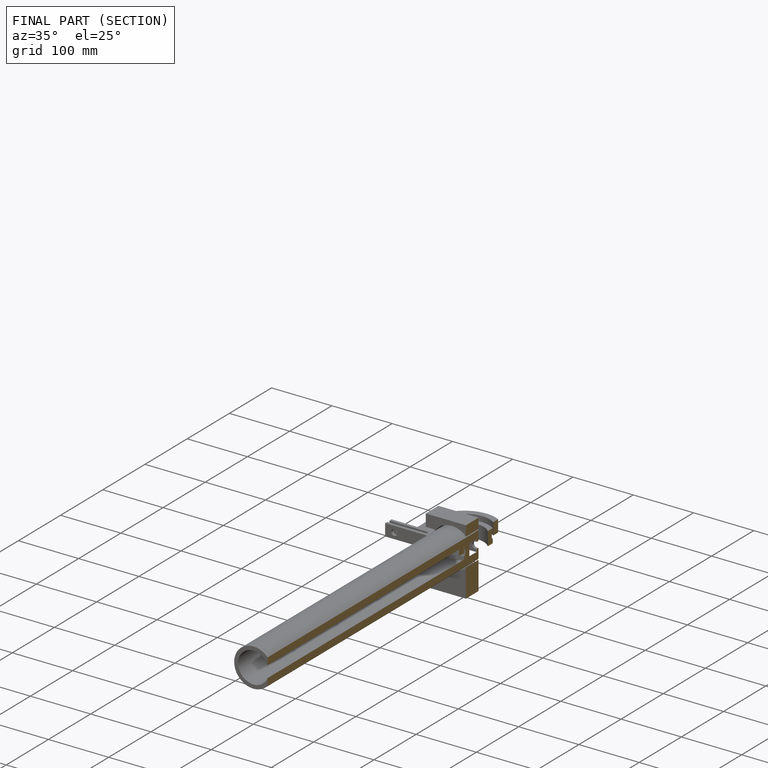
[diagram: finished part — half-section view (interior)]
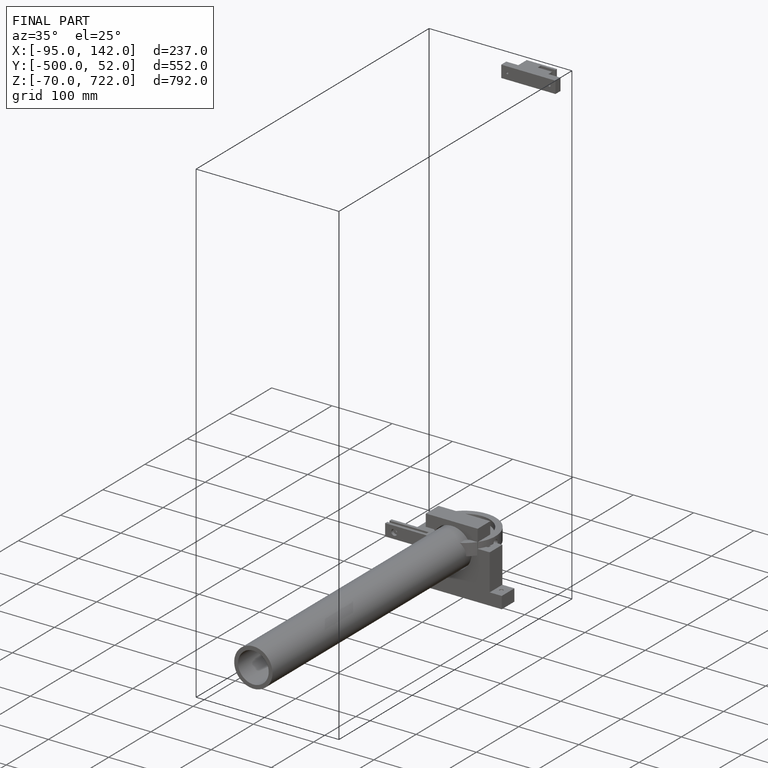
[diagram: finished part — iso view with bounding-box wireframe]
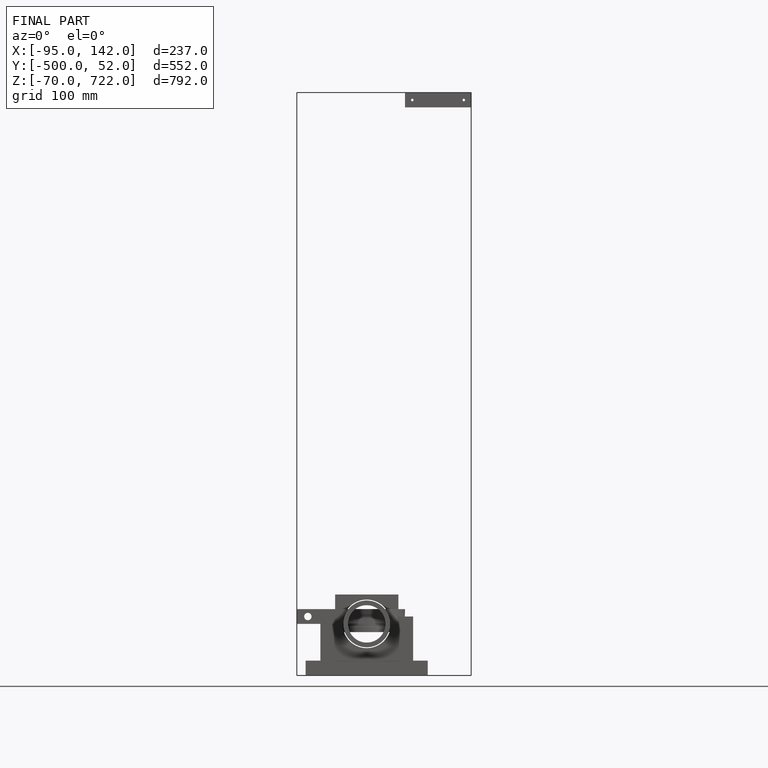
[diagram: finished part — front view with bounding-box wireframe]
